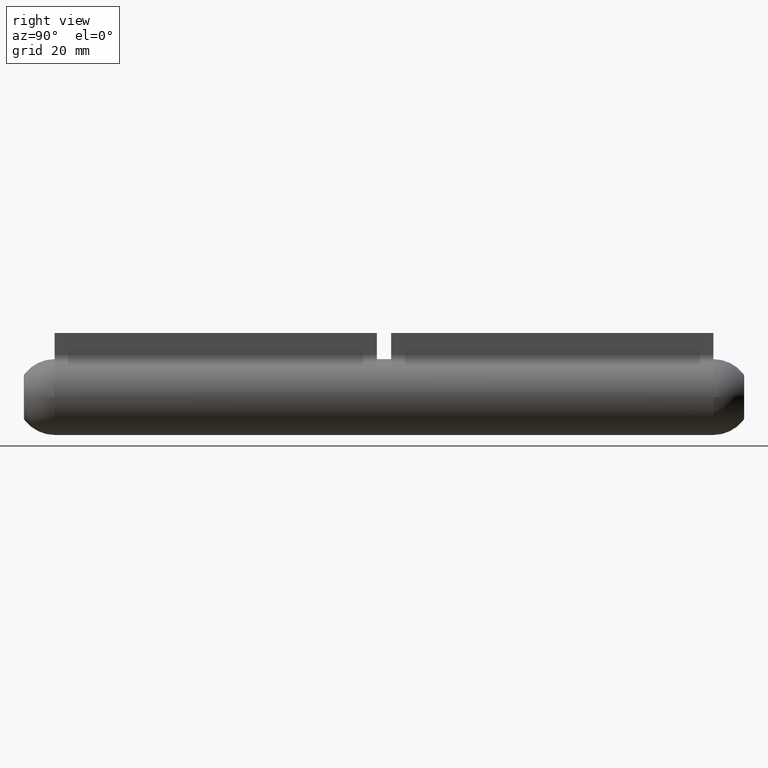
[diagram: clean part render]
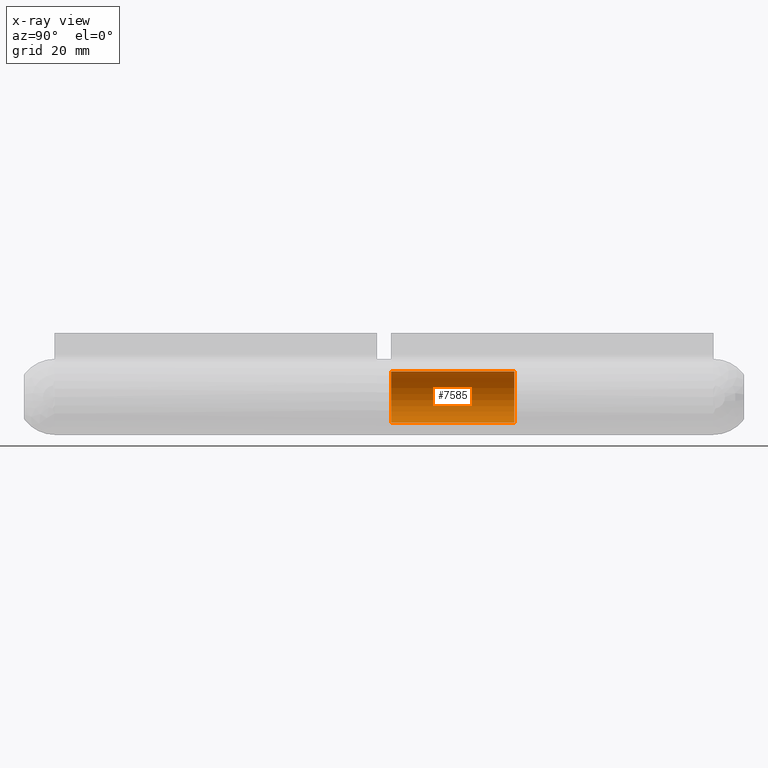
[diagram: x-ray — body ghosted, one internal face saturated and labeled with its STEP entity id]
A machine part, right view, then the same camera in x-ray: the body is ghosted and one INTERNAL B-rep face — a face not visible from any outside direction — is saturated and labeled: STEP entity #7585.
In plain terms, the highlighted cylindrical surface (edge-blend (fillet) strip) has radius 5.4 mm, axis along (-0, -1, -0).
Its self-contained STEP definition (entity closure, byte-faithful):
#155 = VECTOR ( 'NONE', #10976, 1000.000000000000000 ) ;
#505 = EDGE_LOOP ( 'NONE', ( #10072, #2719, #5613, #10060 ) ) ;
#754 = FACE_OUTER_BOUND ( 'NONE', #505, .T. ) ;
#1105 = CARTESIAN_POINT ( 'NONE',  ( 0.000000000000000000, 63.00000000000000000, 0.000000000000000000 ) ) ;
#1890 = VECTOR ( 'NONE', #11236, 1000.000000000000000 ) ;
#1950 = EDGE_CURVE ( 'NONE', #10368, #3606, #5730, .T. ) ;
#1999 = DIRECTION ( 'NONE',  ( 0.000000000000000000, -1.000000000000000000, 0.000000000000000000 ) ) ;
#2719 = ORIENTED_EDGE ( 'NONE', *, *, #4014, .T. ) ;
#2862 = CARTESIAN_POINT ( 'NONE',  ( 6.613092715395707467E-16, 37.00000000000000711, 5.400000000000000355 ) ) ;
#3086 = CARTESIAN_POINT ( 'NONE',  ( 0.000000000000000000, 64.00000000000000000, -5.400000000000000355 ) ) ;
#3606 = VERTEX_POINT ( 'NONE', #7666 ) ;
#3650 = AXIS2_PLACEMENT_3D ( 'NONE', #1105, #1999, #10952 ) ;
#3712 = CYLINDRICAL_SURFACE ( 'NONE', #8009, 5.400000000000000355 ) ;
#4014 = EDGE_CURVE ( 'NONE', #9631, #10368, #7198, .T. ) ;
#4178 = AXIS2_PLACEMENT_3D ( 'NONE', #4957, #5124, #6039 ) ;
#4379 = CARTESIAN_POINT ( 'NONE',  ( 6.613092715395707467E-16, 63.00000000000000000, 5.400000000000000355 ) ) ;
#4957 = CARTESIAN_POINT ( 'NONE',  ( 0.000000000000000000, 37.00000000000000711, 0.000000000000000000 ) ) ;
#5124 = DIRECTION ( 'NONE',  ( 0.000000000000000000, 1.000000000000000000, 0.000000000000000000 ) ) ;
#5208 = DIRECTION ( 'NONE',  ( 0.000000000000000000, 0.000000000000000000, -1.000000000000000000 ) ) ;
#5240 = CARTESIAN_POINT ( 'NONE',  ( 6.613092715395707467E-16, 64.00000000000000000, 5.400000000000000355 ) ) ;
#5613 = ORIENTED_EDGE ( 'NONE', *, *, #1950, .T. ) ;
#5730 = LINE ( 'NONE', #3086, #155 ) ;
#6039 = DIRECTION ( 'NONE',  ( 0.000000000000000000, 0.000000000000000000, 1.000000000000000000 ) ) ;
#7198 = CIRCLE ( 'NONE', #3650, 5.400000000000000355 ) ;
#7585 = ADVANCED_FACE ( 'NONE', ( #754 ), #3712, .T. ) ;
#7666 = CARTESIAN_POINT ( 'NONE',  ( 0.000000000000000000, 37.00000000000000711, -5.400000000000000355 ) ) ;
#7838 = CARTESIAN_POINT ( 'NONE',  ( 0.000000000000000000, 63.00000000000000000, -5.400000000000000355 ) ) ;
#8009 = AXIS2_PLACEMENT_3D ( 'NONE', #11089, #12034, #5208 ) ;
#8290 = EDGE_CURVE ( 'NONE', #9631, #9937, #10268, .T. ) ;
#9133 = EDGE_CURVE ( 'NONE', #3606, #9937, #9424, .T. ) ;
#9424 = CIRCLE ( 'NONE', #4178, 5.400000000000000355 ) ;
#9631 = VERTEX_POINT ( 'NONE', #4379 ) ;
#9937 = VERTEX_POINT ( 'NONE', #2862 ) ;
#10060 = ORIENTED_EDGE ( 'NONE', *, *, #9133, .T. ) ;
#10072 = ORIENTED_EDGE ( 'NONE', *, *, #8290, .F. ) ;
#10268 = LINE ( 'NONE', #5240, #1890 ) ;
#10368 = VERTEX_POINT ( 'NONE', #7838 ) ;
#10952 = DIRECTION ( 'NONE',  ( 0.000000000000000000, 0.000000000000000000, 1.000000000000000000 ) ) ;
#10976 = DIRECTION ( 'NONE',  ( -0.000000000000000000, -1.000000000000000000, -0.000000000000000000 ) ) ;
#11089 = CARTESIAN_POINT ( 'NONE',  ( 0.000000000000000000, 64.00000000000000000, 0.000000000000000000 ) ) ;
#11236 = DIRECTION ( 'NONE',  ( -0.000000000000000000, -1.000000000000000000, -0.000000000000000000 ) ) ;
#12034 = DIRECTION ( 'NONE',  ( -0.000000000000000000, -1.000000000000000000, -0.000000000000000000 ) ) ;